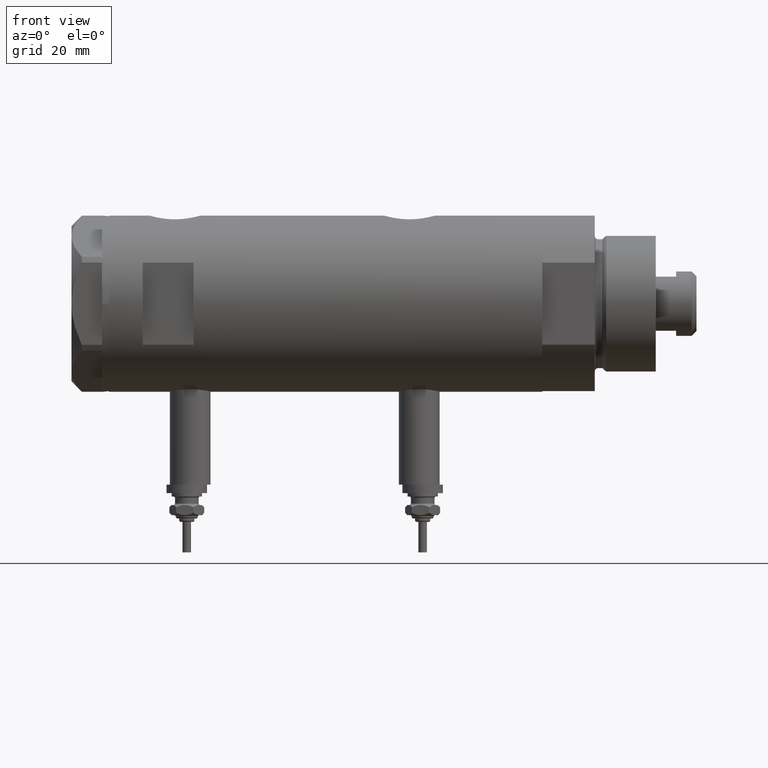
[diagram: clean part render]
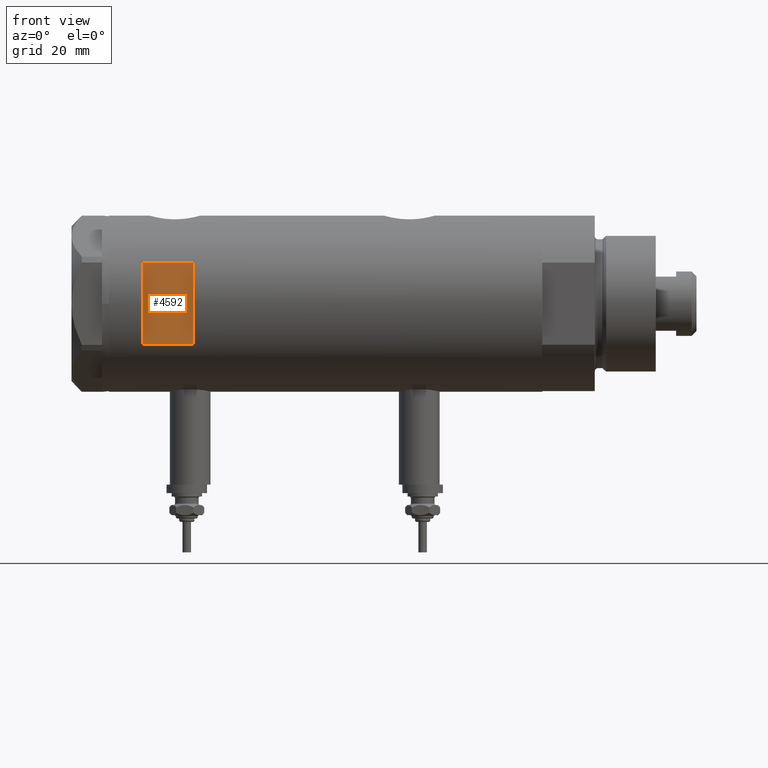
[diagram: same view with one face highlighted and labeled with its STEP entity id]
A machine part, front view. The second image highlights one B-rep face of the part: STEP entity #4592.
In plain terms, the highlighted planar face has unit normal (-0, 1, 0).
Its self-contained STEP definition (entity closure, byte-faithful):
#701 = CARTESIAN_POINT ( 'NONE',  ( -12.12435565298214080, -23.00000000000000355, -63.95000000000000995 ) ) ;
#798 = EDGE_LOOP ( 'NONE', ( #5687, #5279, #1136, #1667 ) ) ;
#889 = VERTEX_POINT ( 'NONE', #2401 ) ;
#929 = CARTESIAN_POINT ( 'NONE',  ( -26.00000000000000355, -23.00000000000000355, 53.94999999999999574 ) ) ;
#1136 = ORIENTED_EDGE ( 'NONE', *, *, #6090, .T. ) ;
#1142 = CARTESIAN_POINT ( 'NONE',  ( -12.12435565298214080, -23.00000000000000355, 53.94999999999999574 ) ) ;
#1186 = LINE ( 'NONE', #1221, #4580 ) ;
#1221 = CARTESIAN_POINT ( 'NONE',  ( -26.00000000000000355, -23.00000000000000355, 38.94999999999999574 ) ) ;
#1237 = VERTEX_POINT ( 'NONE', #1142 ) ;
#1667 = ORIENTED_EDGE ( 'NONE', *, *, #2160, .F. ) ;
#1967 = LINE ( 'NONE', #929, #3122 ) ;
#2077 = FACE_OUTER_BOUND ( 'NONE', #798, .T. ) ;
#2108 = DIRECTION ( 'NONE',  ( 0.000000000000000000, 1.000000000000000000, 0.000000000000000000 ) ) ;
#2160 = EDGE_CURVE ( 'NONE', #1237, #889, #1967, .T. ) ;
#2401 = CARTESIAN_POINT ( 'NONE',  ( 12.12435565298214080, -23.00000000000000355, 53.94999999999999574 ) ) ;
#2445 = DIRECTION ( 'NONE',  ( 0.000000000000000000, 0.000000000000000000, 1.000000000000000000 ) ) ;
#2551 = CARTESIAN_POINT ( 'NONE',  ( -12.12435565298214080, -23.00000000000000355, 38.94999999999999574 ) ) ;
#3096 = VERTEX_POINT ( 'NONE', #2551 ) ;
#3122 = VECTOR ( 'NONE', #5305, 1000.000000000000000 ) ;
#3499 = EDGE_CURVE ( 'NONE', #1237, #3096, #5495, .T. ) ;
#3509 = CARTESIAN_POINT ( 'NONE',  ( 12.12435565298214080, -23.00000000000000355, 38.94999999999999574 ) ) ;
#3758 = VECTOR ( 'NONE', #2445, 1000.000000000000000 ) ;
#4441 = PLANE ( 'NONE',  #6230 ) ;
#4541 = CARTESIAN_POINT ( 'NONE',  ( -26.00000000000000355, -23.00000000000000355, 53.94999999999999574 ) ) ;
#4580 = VECTOR ( 'NONE', #6087, 1000.000000000000000 ) ;
#4592 = ADVANCED_FACE ( 'NONE', ( #2077 ), #4441, .F. ) ;
#4957 = DIRECTION ( 'NONE',  ( 0.000000000000000000, -0.000000000000000000, 1.000000000000000000 ) ) ;
#5081 = VECTOR ( 'NONE', #6041, 1000.000000000000000 ) ;
#5279 = ORIENTED_EDGE ( 'NONE', *, *, #5498, .T. ) ;
#5305 = DIRECTION ( 'NONE',  ( 1.000000000000000000, -0.000000000000000000, -0.000000000000000000 ) ) ;
#5329 = CARTESIAN_POINT ( 'NONE',  ( 12.12435565298214080, -23.00000000000000355, -63.95000000000000995 ) ) ;
#5495 = LINE ( 'NONE', #701, #5081 ) ;
#5498 = EDGE_CURVE ( 'NONE', #3096, #5927, #1186, .T. ) ;
#5687 = ORIENTED_EDGE ( 'NONE', *, *, #3499, .T. ) ;
#5816 = LINE ( 'NONE', #5329, #3758 ) ;
#5927 = VERTEX_POINT ( 'NONE', #3509 ) ;
#6041 = DIRECTION ( 'NONE',  ( -0.000000000000000000, -0.000000000000000000, -1.000000000000000000 ) ) ;
#6087 = DIRECTION ( 'NONE',  ( 1.000000000000000000, -0.000000000000000000, -0.000000000000000000 ) ) ;
#6090 = EDGE_CURVE ( 'NONE', #5927, #889, #5816, .T. ) ;
#6230 = AXIS2_PLACEMENT_3D ( 'NONE', #4541, #2108, #4957 ) ;